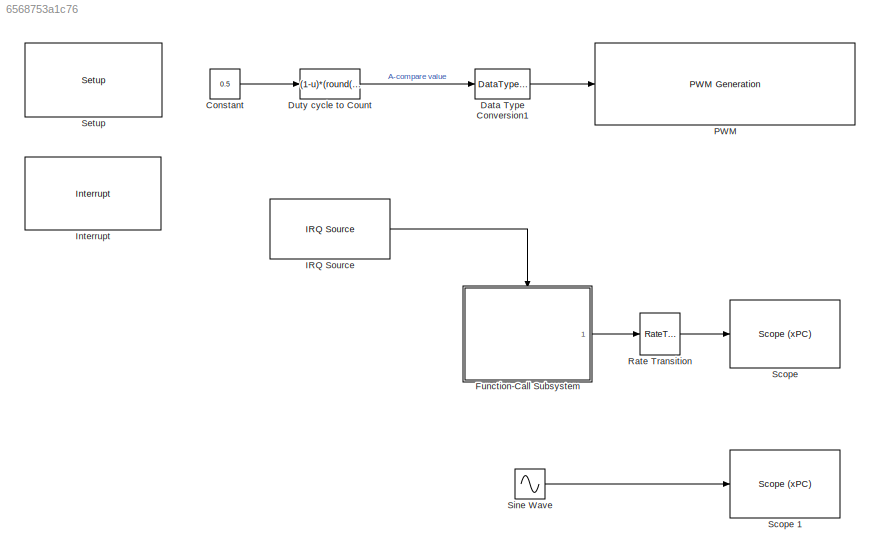
MODEL slx_6568753a1c76
KIND model
CONFIG PreLoadFcn = fpga_freq = 33e6;\nTs = 0.001;\nTpwm = 100e-6;
BLOCK [Constant] Constant
  SampleTime = Ts
  Value = 0.5
BLOCK [DataTypeConversion] Data Type Conversion1
  OutDataTypeStr = uint32
  RndMeth = Floor
  SaturateOnIntegerOverflow = off
BLOCK [Fcn] Duty cycle to Count
  Expr = (1-u)*(round(Tpwm*fpga_freq/2)-1)
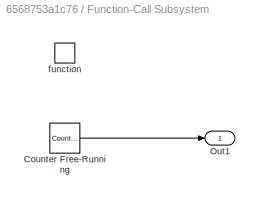
BLOCK [SubSystem] Function-Call Subsystem
  FunctionWithSeparateData = off
  MaskHideContents = off
  MinAlgLoopOccurrences = off
  Opaque = off
  Ports = [0, 1, 0, 1]
  PropExecContextOutsideSubsystem = off
  RTWSystemCode = Auto
  RequestExecContextInheritance = off
  TreatAsAtomicUnit = on
BLOCK [Reference] Function-Call Subsystem/Counter Free-Running  REF=simulink/Sources/Counter
Free-Running
  NumBits = 32
  Ports = [0, 1]
  SourceBlock = simulink/Sources/Counter\nFree-Running
  SourceType = Counter Free-Running
  tsamp = -1
BLOCK [Outport] Function-Call Subsystem/Out1
  IconDisplay = Port number
BLOCK [TriggerPort] Function-Call Subsystem/function
  Ports = []
  StatesWhenEnabling = held
  TriggerType = function-call
BLOCK [Reference] IRQ Source   REF=xpclib/Asynchronous
Event/IRQ Source
  Ports = [0, 1]
  SourceBlock = xpclib/Asynchronous\nEvent/IRQ Source
  SourceType = xpcinterrupt
  b_type = ATI-RP-R5
  irqNo = Auto (PCI only)
  preempt = 10
  slot = -1
BLOCK [Reference] Interrupt  REF=speedgoatlib_IO301/Interrupt/Interrupt
  Ports = []
  SourceBlock = speedgoatlib_IO301/Interrupt/Interrupt
  SourceType = inta_IO301
  debounce = 0
  delay = 0
  id = 1
  pciSlot = -1
  polarity = 0
  ts = -1
BLOCK [Reference] PWM  REF=speedgoatlib_IO301/PWM Generation/PWM Generation
  Ports = [1]
  SourceBlock = speedgoatlib_IO301/PWM Generation/PWM Generation
  SourceType = pwm_IO301
  channel = [1]
  group = Module setup
  id = 1
  initA = [1]
  initActionA = [0,0,2,1]'
  initActionB = [0,0,2,1]'
  initB = [1]
  initC = [round(fpga_freq*Tpwm/2)-1]
  initStart = [1]
  pciSlot = -1
  protection = [0]
  showA = on
  showAStart = off
  showAStop = off
  showActionA = off
  showActionB = off
  showB = off
  showBStart = off
  showBStop = off
  showC = off
  showStart = off
  toggleAStart = [0]
  toggleAStop = [0]
  toggleBStart = [1]
  toggleBStop = [0]
  triggerPulseLength = 32
  triggerSource = [1]
  ts = -1
BLOCK [RateTransition] Rate Transition
  Deterministic = off
BLOCK [Reference] Scope   REF=xpclib/Misc./Scope (xPC) 
  Ports = [1]
  SourceBlock = xpclib/Misc./Scope (xPC)
  SourceType = xpcscopeblock
  autorestart = off
  autostart = on
  dynamicfilemode = off
  filename = data.dat
  formatstr = '%15.6f'
  grid = on
  interleave = 1
  maxwritefilesize = 512*1024^2
  mode = Lazy
  noprepostsamples = 0
  nosamples = 3
  scopeno = 1
  scopetype = Target
  triggerlevel = 0.0
  triggermode = FreeRun
  triggersample = 0
  triggerscope = 1
  triggersignal = 1
  triggerslope = Either
  trigsignalfromport = off
  viewmode = Numerical
  writesize = 512
  ylimits = [0,0]
BLOCK [Reference] Scope 1  REF=xpclib/Misc./Scope (xPC) 
  Ports = [1]
  SourceBlock = xpclib/Misc./Scope (xPC)
  SourceType = xpcscopeblock
  autorestart = off
  autostart = on
  dynamicfilemode = off
  filename = data.dat
  formatstr = '%15.6f'
  grid = on
  interleave = 1
  maxwritefilesize = 512*1024^2
  mode = Lazy
  noprepostsamples = 0
  nosamples = 250
  scopeno = 2
  scopetype = Target
  triggerlevel = 0.0
  triggermode = FreeRun
  triggersample = 0
  triggerscope = 1
  triggersignal = 1
  triggerslope = Either
  trigsignalfromport = off
  viewmode = Graphical redraw
  writesize = 512
  ylimits = [0,0]
BLOCK [Reference] Setup  REF=speedgoatlib_IO301/Setup/Setup
  Ports = []
  SourceBlock = speedgoatlib_IO301/Setup/Setup
  SourceType = setup_IO301
  fpga1 = speedgoat_IO301_default
  group = Module setup
  id = 1
  lowerDirection = [1, 1, 1, 1, 1, 0, 0, 0, 0, 0, 0, 0, 1, 1, 1, 1]
  lowerReset = [1]
  lowerValue = [0]
  pciSlot = -1
  upperDirection = [1, 1, 1, 1, 1, 1, 1, 1, 0, 0, 0, 0, 0, 0, 0, 0]
  upperReset = [1]
  upperValue = [0]
BLOCK [Sin] Sine Wave
  Amplitude = [1, 2, 3]
  Frequency = 2*pi*10
  Ports = [0, 1]
  SampleTime = Ts
LINE Constant:1 -> Duty cycle to Count:1
LINE Data Type Conversion1:1 -> PWM:1
LINE Duty cycle to Count:1 -> Data Type Conversion1:1
LINE Function-Call Subsystem/Counter Free-Running:1 -> Function-Call Subsystem/Out1:1
LINE Function-Call Subsystem:1 -> Rate Transition:1
LINE IRQ Source :1 -> Function-Call Subsystem:trigger
LINE Rate Transition:1 -> Scope :1
LINE Sine Wave:1 -> Scope 1:1
